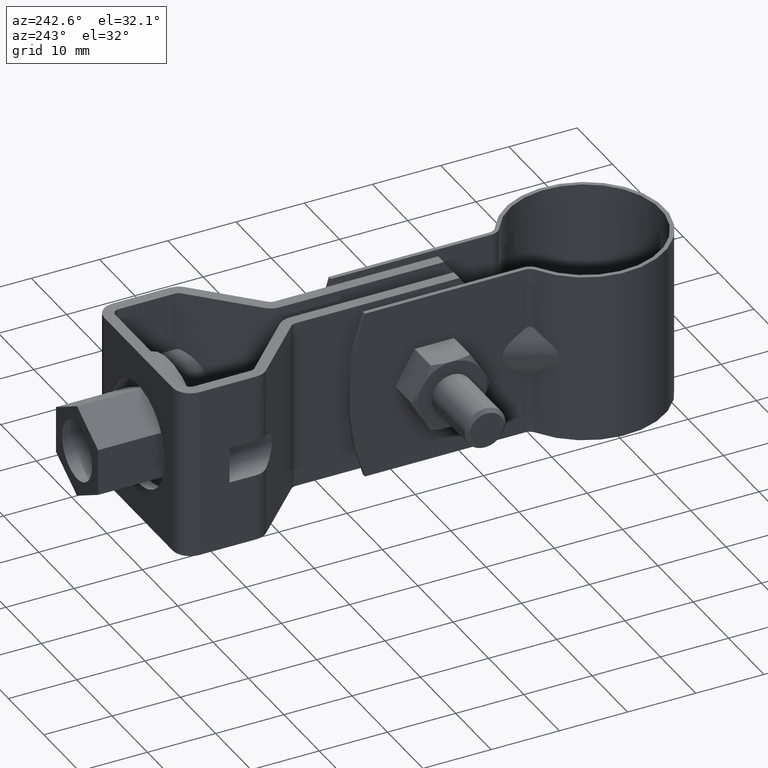
[diagram: clean part render]
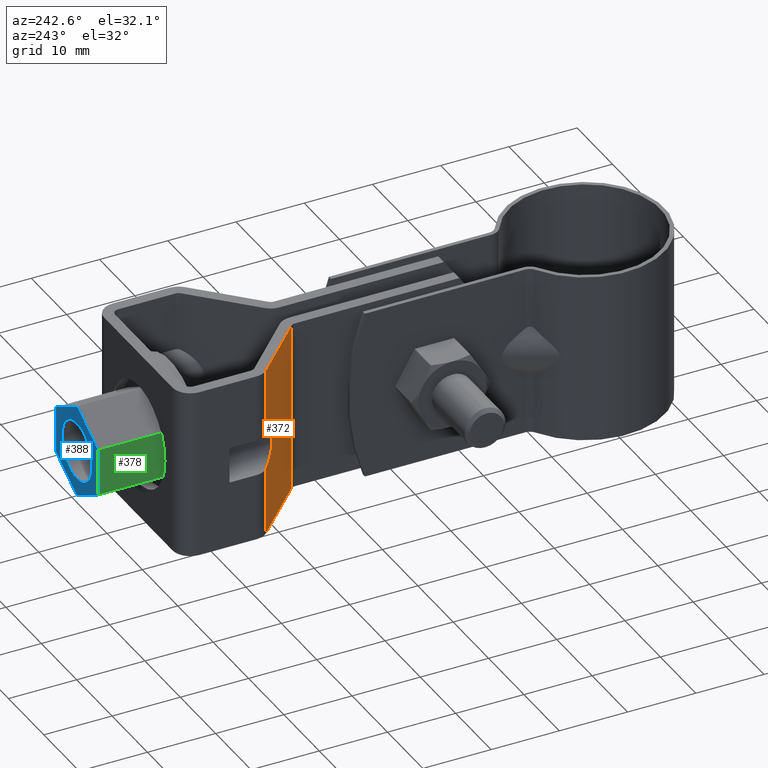
[diagram: same view with three faces highlighted in distinct colors, each labeled with its STEP entity id]
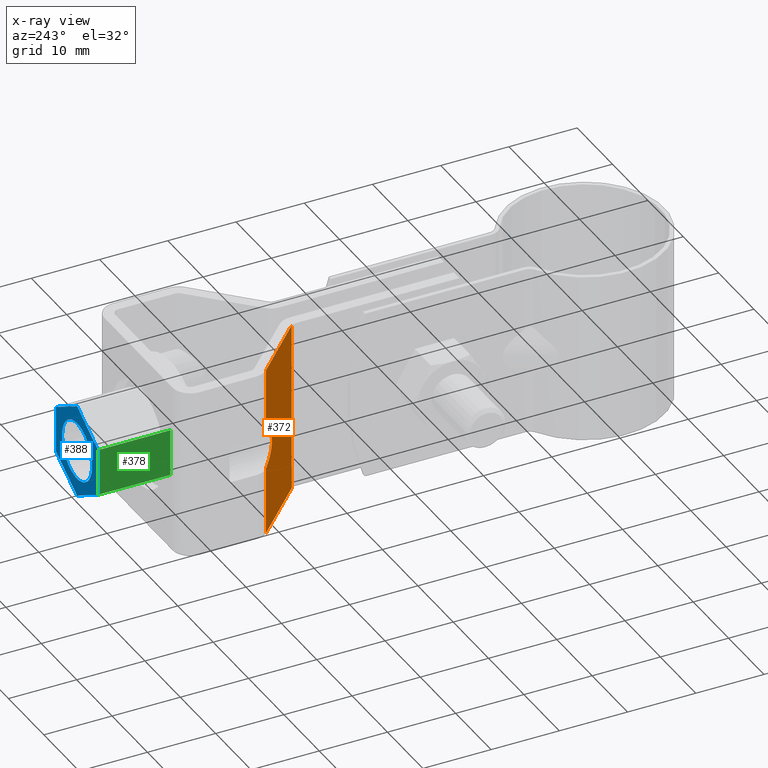
[diagram: x-ray of the same camera — body ghosted, the three highlighted faces saturated]
A machine part, auxiliary view with three faces highlighted in distinct colors.
The next image is the same camera in x-ray (body ghosted, the three faces saturated) — at least one of them is partly hidden behind the body in this view.
Their STEP definitions:

[orange] entity #372 — the highlighted planar face has unit normal (-0.6983, -0.7158, -0).
#372 = ADVANCED_FACE( '', ( #621 ), #622, .T. );
#621 = FACE_OUTER_BOUND( '', #893, .T. );
#622 = PLANE( '', #894 );
#893 = EDGE_LOOP( '', ( #1814, #1815, #1816, #1817, #1818, #1819 ) );
#894 = AXIS2_PLACEMENT_3D( '', #1820, #1821, #1822 );
#1814 = ORIENTED_EDGE( '', *, *, #2219, .T. );
#1815 = ORIENTED_EDGE( '', *, *, #2225, .F. );
#1816 = ORIENTED_EDGE( '', *, *, #2132, .T. );
#1817 = ORIENTED_EDGE( '', *, *, #2151, .F. );
#1818 = ORIENTED_EDGE( '', *, *, #2111, .F. );
#1819 = ORIENTED_EDGE( '', *, *, #2226, .F. );
#1820 = CARTESIAN_POINT( '', ( -3.90167616126554, 45.2631524148588, -12.4999987952625 ) );
#1821 = DIRECTION( '', ( -0.698323835540511, -0.715781964508739, -7.13290233039143E-009 ) );
#1822 = DIRECTION( '', ( 0.715781964508739, -0.698323835540511, -6.98515166942709E-009 ) );
#2111 = EDGE_CURVE( '', #2552, #2554, #2555, .T. );
#2132 = EDGE_CURVE( '', #2592, #2593, #2594, .T. );
#2151 = EDGE_CURVE( '', #2554, #2593, #2625, .T. );
#2219 = EDGE_CURVE( '', #2732, #2730, #2733, .T. );
#2225 = EDGE_CURVE( '', #2592, #2730, #2740, .T. );
#2226 = EDGE_CURVE( '', #2732, #2552, #2741, .T. );
#2552 = VERTEX_POINT( '', #3317 );
#2554 = VERTEX_POINT( '', #3319 );
#2555 = LINE( '', #3320, #3321 );
#2592 = VERTEX_POINT( '', #3369 );
#2593 = VERTEX_POINT( '', #3370 );
#2594 = ELLIPSE( '', #3371, 3.70224472166266, 2.64999999999997 );
#2625 = LINE( '', #3437, #3438 );
#2730 = VERTEX_POINT( '', #3611 );
#2732 = VERTEX_POINT( '', #3613 );
#2733 = LINE( '', #3614, #3615 );
#2740 = LINE( '', #3625, #3626 );
#2741 = LINE( '', #3627, #3628 );
#3317 = CARTESIAN_POINT( '', ( -3.30167616127372, 44.6777865882608, -12.4999988011178 ) );
#3319 = CARTESIAN_POINT( '', ( -11.4656419690721, 52.6426309107022, -12.4999987214475 ) );
#3320 = CARTESIAN_POINT( '', ( -3.90167616126554, 45.2631524148588, -12.4999987952625 ) );
#3321 = VECTOR( '', #3994, 1000.00000000000 );
#3369 = CARTESIAN_POINT( '', ( -11.4656419687900, 52.6426307606376, 2.53126232485071 ) );
#3370 = CARTESIAN_POINT( '', ( -11.4656419688850, 52.6426308111792, -2.53125976774576 ) );
#3371 = AXIS2_PLACEMENT_3D( '', #4033, #4034, #4035 );
#3437 = CARTESIAN_POINT( '', ( -11.4656419690721, 52.6426309107022, -12.4999987214475 ) );
#3438 = VECTOR( '', #4060, 1000.00000000000 );
#3611 = CARTESIAN_POINT( '', ( -11.4656419686029, 52.6426306611147, 12.5000012785525 ) );
#3613 = CARTESIAN_POINT( '', ( -3.30167616080447, 44.6777863386733, 12.5000011988822 ) );
#3614 = CARTESIAN_POINT( '', ( -3.90167616079629, 45.2631521652713, 12.5000012047375 ) );
#3615 = VECTOR( '', #4166, 1000.00000000000 );
#3625 = CARTESIAN_POINT( '', ( -11.4656419690721, 52.6426309107022, -12.4999987214475 ) );
#3626 = VECTOR( '', #4176, 1000.00000000000 );
#3627 = CARTESIAN_POINT( '', ( -3.30167616127372, 44.6777865882608, -12.4999988011178 ) );
#3628 = VECTOR( '', #4177, 1000.00000000000 );
#3994 = DIRECTION( '', ( -0.715781964508736, 0.698323835540514, 6.98515166942712E-009 ) );
#4033 = CARTESIAN_POINT( '', ( -12.2499999964474, 53.4078580945533, 1.28620683548242E-006 ) );
#4034 = DIRECTION( '', ( 0.698323835540509, 0.715781964508740, 7.13290236549389E-009 ) );
#4035 = DIRECTION( '', ( -0.715781964508740, 0.698323835540509, 6.98515163344706E-009 ) );
#4060 = DIRECTION( '', ( 1.87698704392248E-011, -9.98350074832307E-009, 1.00000000000000 ) );
#4166 = DIRECTION( '', ( -0.715781964508736, 0.698323835540514, 6.98515166942712E-009 ) );
#4176 = DIRECTION( '', ( 1.87698704392248E-011, -9.98350074832307E-009, 1.00000000000000 ) );
#4177 = DIRECTION( '', ( -1.87698092089071E-011, 9.98350068858617E-009, -1.00000000000000 ) );

[blue] entity #388 — the highlighted planar face has unit normal (0, 1, 0).
#388 = ADVANCED_FACE( '', ( #659, #660 ), #661, .T. );
#659 = FACE_BOUND( '', #931, .T. );
#660 = FACE_OUTER_BOUND( '', #932, .T. );
#661 = PLANE( '', #933 );
#931 = EDGE_LOOP( '', ( #1924 ) );
#932 = EDGE_LOOP( '', ( #1925, #1926, #1927, #1928, #1929, #1930 ) );
#933 = AXIS2_PLACEMENT_3D( '', #1931, #1932, #1933 );
#1924 = ORIENTED_EDGE( '', *, *, #2245, .T. );
#1925 = ORIENTED_EDGE( '', *, *, #2231, .T. );
#1926 = ORIENTED_EDGE( '', *, *, #2240, .T. );
#1927 = ORIENTED_EDGE( '', *, *, #2242, .T. );
#1928 = ORIENTED_EDGE( '', *, *, #2247, .T. );
#1929 = ORIENTED_EDGE( '', *, *, #2249, .T. );
#1930 = ORIENTED_EDGE( '', *, *, #2250, .T. );
#1931 = CARTESIAN_POINT( '', ( -5.94999999608928, 74.4078580601693, 3.43523559742041 ) );
#1932 = DIRECTION( '', ( 1.39877502405824E-011, 1.00000000000000, 9.98350074832280E-009 ) );
#1933 = DIRECTION( '', ( -0.499999999983745, -8.63897139172213E-009, 0.866025403793824 ) );
#2231 = EDGE_CURVE( '', #2750, #2748, #2751, .T. );
#2240 = EDGE_CURVE( '', #2748, #2764, #2766, .T. );
#2242 = EDGE_CURVE( '', #2764, #2767, #2769, .T. );
#2245 = EDGE_CURVE( '', #2774, #2774, #2775, .T. );
#2247 = EDGE_CURVE( '', #2767, #2776, #2778, .T. );
#2249 = EDGE_CURVE( '', #2776, #2779, #2781, .T. );
#2250 = EDGE_CURVE( '', #2779, #2750, #2782, .T. );
#2748 = VERTEX_POINT( '', #3637 );
#2750 = VERTEX_POINT( '', #3640 );
#2751 = LINE( '', #3641, #3642 );
#2764 = VERTEX_POINT( '', #3661 );
#2766 = LINE( '', #3664, #3665 );
#2767 = VERTEX_POINT( '', #3666 );
#2769 = LINE( '', #3669, #3670 );
#2774 = VERTEX_POINT( '', #3675 );
#2775 = CIRCLE( '', #3676, 4.25000000000000 );
#2776 = VERTEX_POINT( '', #3677 );
#2778 = LINE( '', #3680, #3681 );
#2779 = VERTEX_POINT( '', #3682 );
#2781 = LINE( '', #3685, #3686 );
#2782 = LINE( '', #3687, #3688 );
#3637 = CARTESIAN_POINT( '', ( -5.94999999608928, 74.4078580601693, 3.43523559742041 ) );
#3640 = CARTESIAN_POINT( '', ( -5.94999999621824, 74.4078581287607, -3.43523260593614 ) );
#3641 = CARTESIAN_POINT( '', ( -5.94999999621823, 74.4078581287607, -3.43523260593614 ) );
#3642 = VECTOR( '', #4184, 1000.00000000000 );
#3661 = CARTESIAN_POINT( '', ( 3.97520435757477E-009, 74.4078580257904, 6.87046969898700 ) );
#3664 = CARTESIAN_POINT( '', ( -5.94999999608928, 74.4078580601693, 3.43523559742041 ) );
#3665 = VECTOR( '', #4195, 1000.00000000000 );
#3666 = CARTESIAN_POINT( '', ( 5.95000000391072, 74.4078580600028, 3.43523559719705 ) );
#3669 = CARTESIAN_POINT( '', ( 3.97520262285129E-009, 74.4078580257904, 6.87046969898700 ) );
#3670 = VECTOR( '', #4197, 1000.00000000000 );
#3675 = CARTESIAN_POINT( '', ( -4.24999999615375, 74.4078580944412, 1.49571022361374E-006 ) );
#3676 = AXIS2_PLACEMENT_3D( '', #4204, #4205, #4206 );
#3677 = CARTESIAN_POINT( '', ( 5.95000000378177, 74.4078581285942, -3.43523260615949 ) );
#3680 = CARTESIAN_POINT( '', ( 5.95000000391073, 74.4078580600028, 3.43523559719705 ) );
#3681 = VECTOR( '', #4208, 1000.00000000000 );
#3682 = CARTESIAN_POINT( '', ( 3.71729485903914E-009, 74.4078581629731, -6.87046670772611 ) );
#3685 = CARTESIAN_POINT( '', ( 5.95000000378177, 74.4078581285942, -3.43523260615951 ) );
#3686 = VECTOR( '', #4210, 1000.00000000000 );
#3687 = CARTESIAN_POINT( '', ( 3.71728878750697E-009, 74.4078581629731, -6.87046670772611 ) );
#3688 = VECTOR( '', #4211, 1000.00000000000 );
#4184 = DIRECTION( '', ( 1.87695430914839E-011, -9.98350074832307E-009, 1.00000000000000 ) );
#4195 = DIRECTION( '', ( 0.866025403793824, -5.00386412104938E-009, 0.499999999983745 ) );
#4197 = DIRECTION( '', ( 0.866025403775054, 4.97963662727368E-009, -0.500000000016255 ) );
#4204 = CARTESIAN_POINT( '', ( 3.84624917462609E-009, 74.4078580943817, 1.49563045281909E-006 ) );
#4205 = DIRECTION( '', ( -1.39877502405819E-011, -1.00000000000000, -9.98350074832281E-009 ) );
#4206 = DIRECTION( '', ( -1.00000000000000, 1.39877500531956E-011, 1.87695987422818E-011 ) );
#4208 = DIRECTION( '', ( -1.87699871806937E-011, 9.98350074832307E-009, -1.00000000000000 ) );
#4210 = DIRECTION( '', ( -0.866025403793824, 5.00386412104938E-009, -0.499999999983745 ) );
#4211 = DIRECTION( '', ( -0.866025403775054, -4.97963662727368E-009, 0.500000000016255 ) );

[green] entity #378 — the highlighted planar face has unit normal (1, -0, -0).
#378 = ADVANCED_FACE( '', ( #635 ), #636, .F. );
#635 = FACE_OUTER_BOUND( '', #907, .T. );
#636 = PLANE( '', #908 );
#907 = EDGE_LOOP( '', ( #1857, #1858, #1859, #1860 ) );
#908 = AXIS2_PLACEMENT_3D( '', #1861, #1862, #1863 );
#1857 = ORIENTED_EDGE( '', *, *, #2229, .T. );
#1858 = ORIENTED_EDGE( '', *, *, #2230, .F. );
#1859 = ORIENTED_EDGE( '', *, *, #2231, .F. );
#1860 = ORIENTED_EDGE( '', *, *, #2232, .T. );
#1861 = CARTESIAN_POINT( '', ( -5.94999999621823, 74.4078581287607, -3.43523260593614 ) );
#1862 = DIRECTION( '', ( 1.00000000000000, -1.39877500531956E-011, -1.87695987422818E-011 ) );
#1863 = DIRECTION( '', ( -1.87695986026351E-011, 9.98350074832307E-009, -1.00000000000000 ) );
#2229 = EDGE_CURVE( '', #2745, #2746, #2747, .T. );
#2230 = EDGE_CURVE( '', #2748, #2746, #2749, .T. );
#2231 = EDGE_CURVE( '', #2750, #2748, #2751, .T. );
#2232 = EDGE_CURVE( '', #2750, #2745, #2752, .T. );
#2745 = VERTEX_POINT( '', #3633 );
#2746 = VERTEX_POINT( '', #3634 );
#2747 = LINE( '', #3635, #3636 );
#2748 = VERTEX_POINT( '', #3637 );
#2749 = LINE( '', #3638, #3639 );
#2750 = VERTEX_POINT( '', #3640 );
#2751 = LINE( '', #3641, #3642 );
#2752 = LINE( '', #3643, #3644 );
#3633 = CARTESIAN_POINT( '', ( -5.94999999636650, 63.8078581287607, -3.43523271176126 ) );
#3634 = CARTESIAN_POINT( '', ( -5.94999999623755, 63.8078580601693, 3.43523549159530 ) );
#3635 = CARTESIAN_POINT( '', ( -5.94999999636650, 63.8078581287607, -3.43523271176126 ) );
#3636 = VECTOR( '', #4182, 1000.00000000000 );
#3637 = CARTESIAN_POINT( '', ( -5.94999999608928, 74.4078580601693, 3.43523559742041 ) );
#3638 = CARTESIAN_POINT( '', ( -5.94999999608928, 74.4078580601693, 3.43523559742041 ) );
#3639 = VECTOR( '', #4183, 1000.00000000000 );
#3640 = CARTESIAN_POINT( '', ( -5.94999999621824, 74.4078581287607, -3.43523260593614 ) );
#3641 = CARTESIAN_POINT( '', ( -5.94999999621823, 74.4078581287607, -3.43523260593614 ) );
#3642 = VECTOR( '', #4184, 1000.00000000000 );
#3643 = CARTESIAN_POINT( '', ( -5.94999999621824, 74.4078581287607, -3.43523260593614 ) );
#3644 = VECTOR( '', #4185, 1000.00000000000 );
#4182 = DIRECTION( '', ( 1.87695430914839E-011, -9.98350074832307E-009, 1.00000000000000 ) );
#4183 = DIRECTION( '', ( -1.39877502405819E-011, -1.00000000000000, -9.98350074832280E-009 ) );
#4184 = DIRECTION( '', ( 1.87695430914839E-011, -9.98350074832307E-009, 1.00000000000000 ) );
#4185 = DIRECTION( '', ( -1.39877502405819E-011, -1.00000000000000, -9.98350074832280E-009 ) );